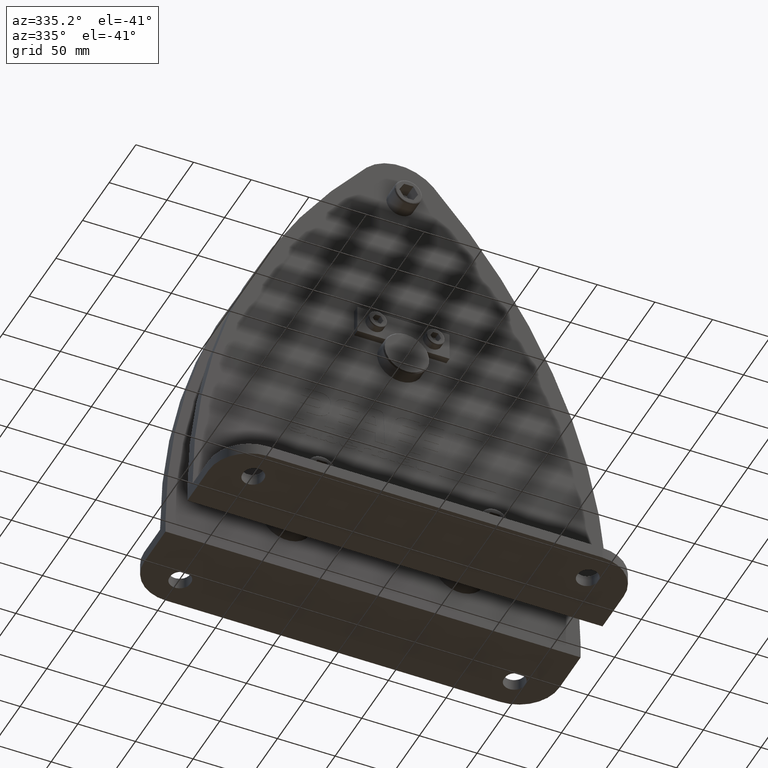
[diagram: clean part render]
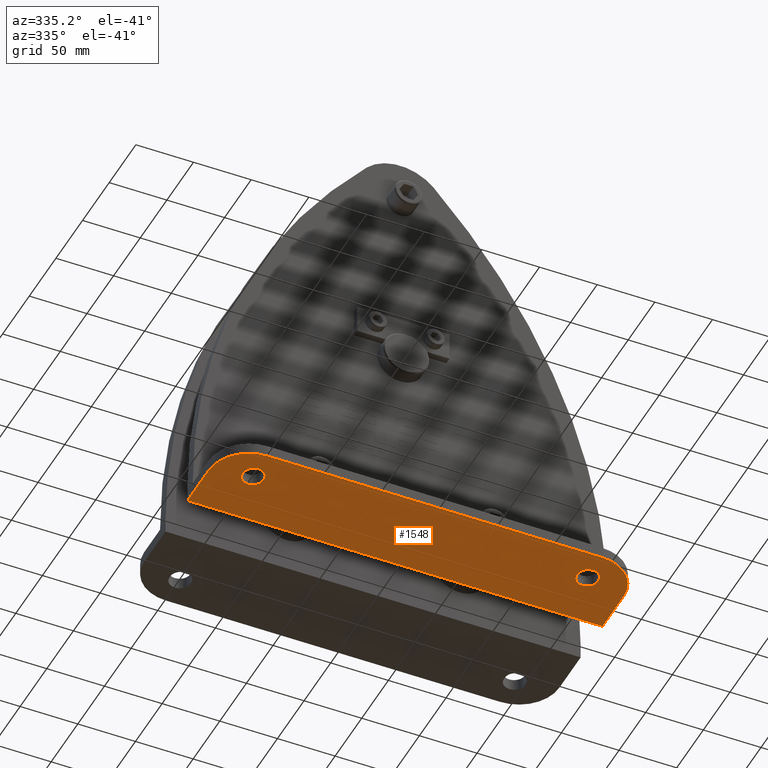
[diagram: same view with one face highlighted and labeled with its STEP entity id]
A machine part, auxiliary view. The second image highlights one B-rep face of the part: STEP entity #1548.
In plain terms, the highlighted planar face has unit normal (0, 0, -1).
Its self-contained STEP definition (entity closure, byte-faithful):
#1548=ADVANCED_FACE('',(#3363,#3364,#3365),#3366,.T.);
#3363=FACE_BOUND('',#5435,.T.);
#3364=FACE_BOUND('',#5436,.T.);
#3365=FACE_OUTER_BOUND('',#5437,.T.);
#3366=PLANE('',#5438);
#5435=EDGE_LOOP('',(#10329,#10330,#10331,#10332));
#5436=EDGE_LOOP('',(#10333,#10334,#10335,#10336));
#5437=EDGE_LOOP('',(#10337,#10338,#10339,#10340,#10341,#10342));
#5438=AXIS2_PLACEMENT_3D('',#10343,#10344,#10345);
#10329=ORIENTED_EDGE('',*,*,#14169,.T.);
#10330=ORIENTED_EDGE('',*,*,#14170,.T.);
#10331=ORIENTED_EDGE('',*,*,#14171,.T.);
#10332=ORIENTED_EDGE('',*,*,#14172,.T.);
#10333=ORIENTED_EDGE('',*,*,#14173,.T.);
#10334=ORIENTED_EDGE('',*,*,#14174,.T.);
#10335=ORIENTED_EDGE('',*,*,#14175,.T.);
#10336=ORIENTED_EDGE('',*,*,#14176,.T.);
#10337=ORIENTED_EDGE('',*,*,#14177,.T.);
#10338=ORIENTED_EDGE('',*,*,#14178,.F.);
#10339=ORIENTED_EDGE('',*,*,#14179,.F.);
#10340=ORIENTED_EDGE('',*,*,#14180,.F.);
#10341=ORIENTED_EDGE('',*,*,#14165,.F.);
#10342=ORIENTED_EDGE('',*,*,#14153,.T.);
#10343=CARTESIAN_POINT('',(0.0,-20.5,-202.0));
#10344=DIRECTION('',(0.0,0.0,-1.0));
#10345=DIRECTION('',(1.0,0.0,0.0));
#14153=EDGE_CURVE('',#17588,#17586,#17589,.T.);
#14165=EDGE_CURVE('',#17588,#17603,#17604,.T.);
#14169=EDGE_CURVE('',#17609,#17610,#17611,.T.);
#14170=EDGE_CURVE('',#17610,#17612,#17613,.T.);
#14171=EDGE_CURVE('',#17612,#17614,#17615,.T.);
#14172=EDGE_CURVE('',#17614,#17609,#17616,.T.);
#14173=EDGE_CURVE('',#17617,#17618,#17619,.T.);
#14174=EDGE_CURVE('',#17618,#17620,#17621,.T.);
#14175=EDGE_CURVE('',#17620,#17622,#17623,.T.);
#14176=EDGE_CURVE('',#17622,#17617,#17624,.T.);
#14177=EDGE_CURVE('',#17586,#17625,#17626,.T.);
#14178=EDGE_CURVE('',#17627,#17625,#17628,.T.);
#14179=EDGE_CURVE('',#17629,#17627,#17630,.T.);
#14180=EDGE_CURVE('',#17603,#17629,#17631,.T.);
#17586=VERTEX_POINT('',#25791);
#17588=VERTEX_POINT('',#25794);
#17589=LINE('',#25795,#25796);
#17603=VERTEX_POINT('',#25815);
#17604=LINE('',#25816,#25817);
#17609=VERTEX_POINT('',#25824);
#17610=VERTEX_POINT('',#25825);
#17611=CIRCLE('',#25826,9.0);
#17612=VERTEX_POINT('',#25827);
#17613=LINE('',#25828,#25829);
#17614=VERTEX_POINT('',#25830);
#17615=CIRCLE('',#25831,9.0);
#17616=LINE('',#25832,#25833);
#17617=VERTEX_POINT('',#25834);
#17618=VERTEX_POINT('',#25835);
#17619=CIRCLE('',#25836,9.0);
#17620=VERTEX_POINT('',#25837);
#17621=LINE('',#25838,#25839);
#17622=VERTEX_POINT('',#25840);
#17623=CIRCLE('',#25841,9.0);
#17624=LINE('',#25842,#25843);
#17625=VERTEX_POINT('',#25844);
#17626=LINE('',#25845,#25846);
#17627=VERTEX_POINT('',#25847);
#17628=CIRCLE('',#25848,35.0000000052);
#17629=VERTEX_POINT('',#25849);
#17630=LINE('',#25850,#25851);
#17631=CIRCLE('',#25852,35.0000000052);
#25791=CARTESIAN_POINT('',(180.0,-20.5,-202.0));
#25794=CARTESIAN_POINT('',(-180.0,-20.5,-202.0));
#25795=CARTESIAN_POINT('',(-180.0,-20.5,-202.0));
#25796=VECTOR('',#30371,1.0);
#25815=CARTESIAN_POINT('',(-180.0,-60.5,-202.0));
#25816=CARTESIAN_POINT('',(-180.0,-20.5,-202.0));
#25817=VECTOR('',#30383,1.0);
#25824=CARTESIAN_POINT('',(136.0,-69.5,-202.0));
#25825=CARTESIAN_POINT('',(154.0,-69.5,-202.0));
#25826=AXIS2_PLACEMENT_3D('',#30386,#30387,#30388);
#25827=CARTESIAN_POINT('',(154.0,-67.5,-202.0));
#25828=CARTESIAN_POINT('',(154.0,-44.5,-202.0));
#25829=VECTOR('',#30389,1.0);
#25830=CARTESIAN_POINT('',(136.0,-67.5,-202.0));
#25831=AXIS2_PLACEMENT_3D('',#30390,#30391,#30392);
#25832=CARTESIAN_POINT('',(136.0,-44.5,-202.0));
#25833=VECTOR('',#30393,1.0);
#25834=CARTESIAN_POINT('',(-154.0,-69.5,-202.0));
#25835=CARTESIAN_POINT('',(-136.0,-69.5,-202.0));
#25836=AXIS2_PLACEMENT_3D('',#30394,#30395,#30396);
#25837=CARTESIAN_POINT('',(-136.0,-67.5,-202.0));
#25838=CARTESIAN_POINT('',(-136.0,-44.5,-202.0));
#25839=VECTOR('',#30397,1.0);
#25840=CARTESIAN_POINT('',(-154.0,-67.5,-202.0));
#25841=AXIS2_PLACEMENT_3D('',#30398,#30399,#30400);
#25842=CARTESIAN_POINT('',(-154.0,-44.5,-202.0));
#25843=VECTOR('',#30401,1.0);
#25844=CARTESIAN_POINT('',(180.0,-60.4999999999924,-202.0));
#25845=CARTESIAN_POINT('',(180.0,-20.5,-202.0));
#25846=VECTOR('',#30402,1.0);
#25847=CARTESIAN_POINT('',(145.0,-95.5,-202.0));
#25848=AXIS2_PLACEMENT_3D('',#30403,#30404,#30405);
#25849=CARTESIAN_POINT('',(-144.999999999992,-95.5,-202.0));
#25850=CARTESIAN_POINT('',(-145.0,-95.5,-202.0));
#25851=VECTOR('',#30406,1.0);
#25852=AXIS2_PLACEMENT_3D('',#30407,#30408,#30409);
#30371=DIRECTION('',(1.0,0.0,0.0));
#30383=DIRECTION('',(0.0,-1.0,0.0));
#30386=CARTESIAN_POINT('',(145.0,-69.5,-202.0));
#30387=DIRECTION('',(0.0,-0.0,1.0));
#30388=DIRECTION('',(1.0,5.79783135082026E-016,0.0));
#30389=DIRECTION('',(0.0,1.0,0.0));
#30390=CARTESIAN_POINT('',(145.0,-67.5,-202.0));
#30391=DIRECTION('',(0.0,0.0,1.0));
#30392=DIRECTION('',(-1.0,-3.82410152926443E-016,0.0));
#30393=DIRECTION('',(-0.0,-1.0,-0.0));
#30394=CARTESIAN_POINT('',(-145.0,-69.5,-202.0));
#30395=DIRECTION('',(0.0,-0.0,1.0));
#30396=DIRECTION('',(1.0,5.79783135082026E-016,0.0));
#30397=DIRECTION('',(0.0,1.0,0.0));
#30398=CARTESIAN_POINT('',(-145.0,-67.5,-202.0));
#30399=DIRECTION('',(0.0,0.0,1.0));
#30400=DIRECTION('',(-1.0,-3.82410152926443E-016,0.0));
#30401=DIRECTION('',(-0.0,-1.0,-0.0));
#30402=DIRECTION('',(0.0,-1.0,0.0));
#30403=CARTESIAN_POINT('',(144.9999999948,-60.4999999948,-202.0));
#30404=DIRECTION('',(0.0,0.0,1.0));
#30405=DIRECTION('',(1.48353202716259E-010,-1.0,0.0));
#30406=DIRECTION('',(1.0,0.0,0.0));
#30407=CARTESIAN_POINT('',(-144.9999999948,-60.4999999948,-202.0));
#30408=DIRECTION('',(0.0,0.0,1.0));
#30409=DIRECTION('',(-1.0,-1.48354116271205E-010,0.0));